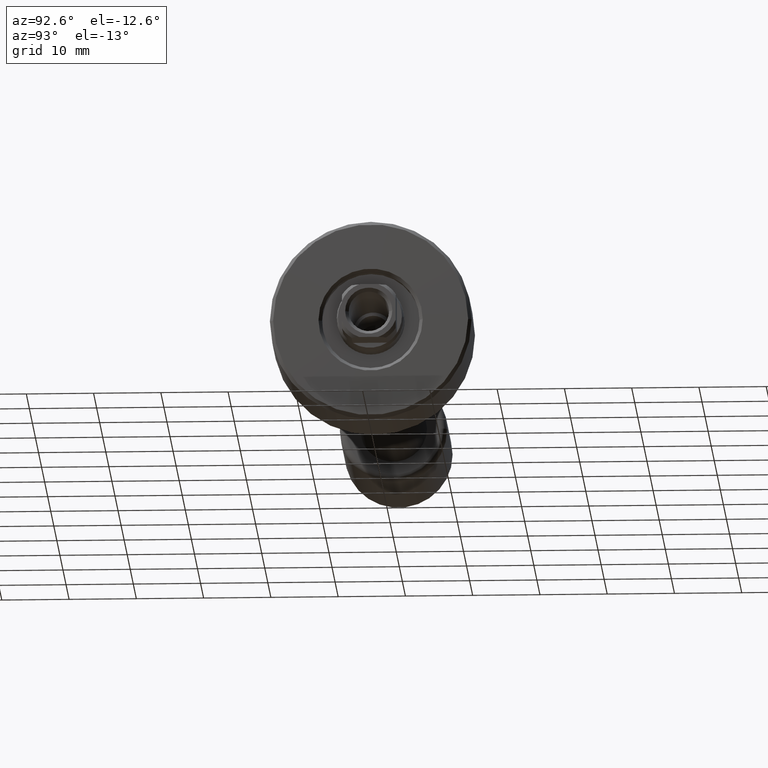
[diagram: clean part render]
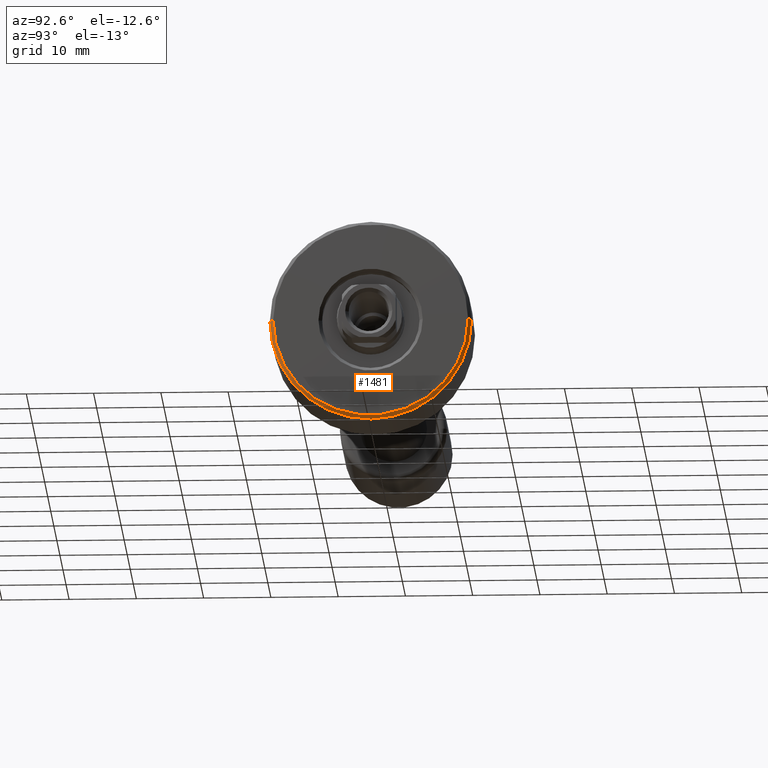
[diagram: same view with one face highlighted and labeled with its STEP entity id]
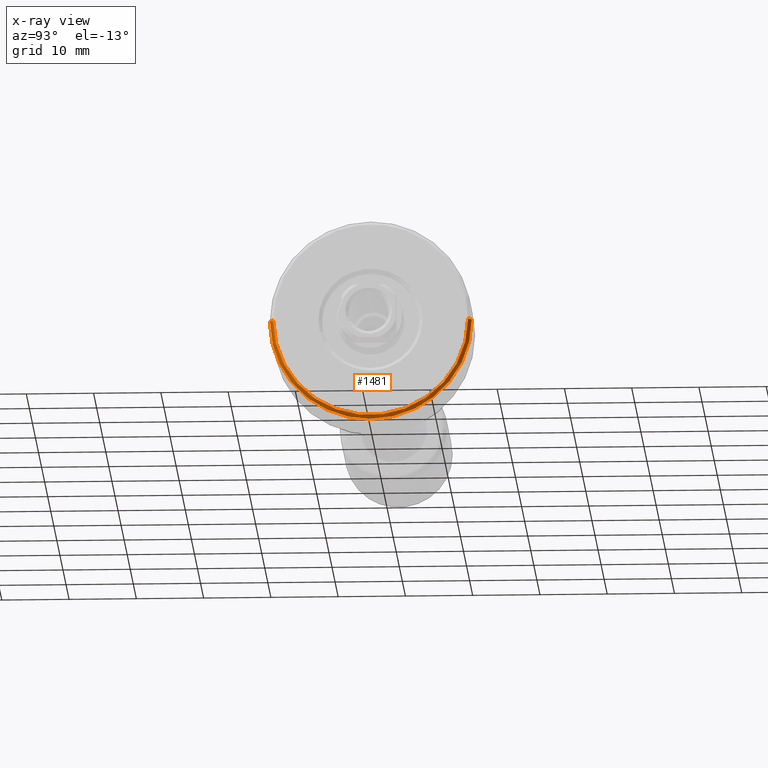
[diagram: x-ray of the same camera — body ghosted, the highlighted face saturated]
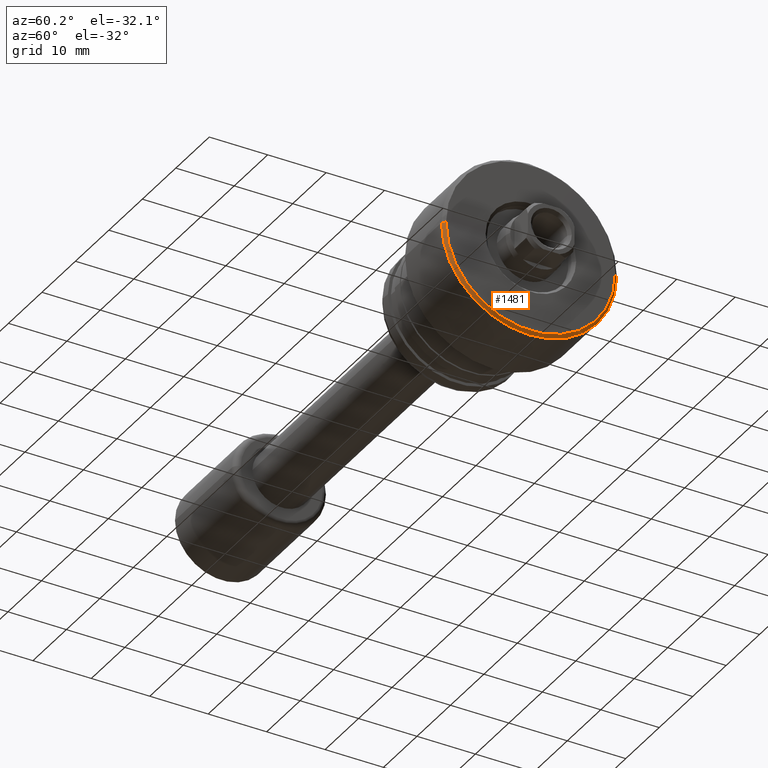
[diagram: same view with one face highlighted and labeled with its STEP entity id]
A machine part, auxiliary view. The second image highlights one B-rep face of the part: STEP entity #1481.
The next image is the same camera in x-ray: the body ghosted, the highlighted face saturated — about 0% of this face is hidden behind the body in this view.
A second angle (auxiliary view) of the same face is appended — the face is thin or edge-on in the first view.
In plain terms, the highlighted conical surface has half-angle 45 deg.
Its self-contained STEP definition (entity closure, byte-faithful):
#50 = AXIS2_PLACEMENT_3D ( 'NONE', #317, #1450, #1856 ) ;
#79 = CARTESIAN_POINT ( 'NONE',  ( -0.1000000000006620593, -1.936230527284280752E-14, 0.000000000000000000 ) ) ;
#109 = ORIENTED_EDGE ( 'NONE', *, *, #1258, .T. ) ;
#137 = CARTESIAN_POINT ( 'NONE',  ( -0.6000000000006998624, -15.00000000000000178, 0.000000000000000000 ) ) ;
#225 = CARTESIAN_POINT ( 'NONE',  ( -0.6000000000006806555, 14.99999999999996270, 1.836970198721027617E-15 ) ) ;
#243 = AXIS2_PLACEMENT_3D ( 'NONE', #1218, #1966, #1381 ) ;
#279 = EDGE_CURVE ( 'NONE', #2035, #2432, #1226, .T. ) ;
#317 = CARTESIAN_POINT ( 'NONE',  ( -0.6000000000006902034, -1.904152510938211848E-14, 0.000000000000000000 ) ) ;
#348 = LINE ( 'NONE', #2006, #566 ) ;
#550 = DIRECTION ( 'NONE',  ( -0.7071067811865479058, -0.7071067811865470176, 0.000000000000000000 ) ) ;
#566 = VECTOR ( 'NONE', #550, 1000.000000000000114 ) ;
#663 = CARTESIAN_POINT ( 'NONE',  ( -0.1000000000006713574, -14.49999999999997335, 0.000000000000000000 ) ) ;
#805 = CONICAL_SURFACE ( 'NONE', #243, 14.99999999999998224, 0.7853981633974482790 ) ;
#807 = DIRECTION ( 'NONE',  ( -1.000000000000000000, 6.415603269213350828E-16, -0.000000000000000000 ) ) ;
#808 = AXIS2_PLACEMENT_3D ( 'NONE', #79, #807, #1561 ) ;
#835 = CARTESIAN_POINT ( 'NONE',  ( -0.6000000000006806555, 14.99999999999996270, 1.836970198721027617E-15 ) ) ;
#878 = EDGE_LOOP ( 'NONE', ( #1471, #1747, #109, #1532 ) ) ;
#909 = VERTEX_POINT ( 'NONE', #137 ) ;
#948 = VECTOR ( 'NONE', #994, 1000.000000000000114 ) ;
#994 = DIRECTION ( 'NONE',  ( -0.7071067811865470176, 0.7071067811865479058, 8.659560562354932858E-17 ) ) ;
#1163 = CIRCLE ( 'NONE', #50, 14.99999999999998224 ) ;
#1218 = CARTESIAN_POINT ( 'NONE',  ( -0.6000000000006902034, -1.904152510938211848E-14, 0.000000000000000000 ) ) ;
#1226 = LINE ( 'NONE', #225, #948 ) ;
#1258 = EDGE_CURVE ( 'NONE', #1526, #909, #348, .T. ) ;
#1381 = DIRECTION ( 'NONE',  ( -6.432932890080667202E-16, -1.000000000000000000, 0.000000000000000000 ) ) ;
#1450 = DIRECTION ( 'NONE',  ( -1.000000000000000000, 6.415603269213350828E-16, -0.000000000000000000 ) ) ;
#1471 = ORIENTED_EDGE ( 'NONE', *, *, #279, .F. ) ;
#1481 = ADVANCED_FACE ( 'NONE', ( #1767 ), #805, .T. ) ;
#1526 = VERTEX_POINT ( 'NONE', #663 ) ;
#1532 = ORIENTED_EDGE ( 'NONE', *, *, #1961, .F. ) ;
#1561 = DIRECTION ( 'NONE',  ( -6.411747330388434316E-16, -1.000000000000000000, 0.000000000000000000 ) ) ;
#1747 = ORIENTED_EDGE ( 'NONE', *, *, #2101, .T. ) ;
#1767 = FACE_OUTER_BOUND ( 'NONE', #878, .T. ) ;
#1798 = CARTESIAN_POINT ( 'NONE',  ( -0.1000000000006527612, 14.49999999999993427, 1.806354028742341858E-15 ) ) ;
#1856 = DIRECTION ( 'NONE',  ( -6.432932890080667202E-16, -1.000000000000000000, 0.000000000000000000 ) ) ;
#1961 = EDGE_CURVE ( 'NONE', #2432, #909, #1163, .T. ) ;
#1966 = DIRECTION ( 'NONE',  ( -1.000000000000000000, 6.415603269213350828E-16, -0.000000000000000000 ) ) ;
#2006 = CARTESIAN_POINT ( 'NONE',  ( -0.6000000000006998624, -15.00000000000000178, 0.000000000000000000 ) ) ;
#2035 = VERTEX_POINT ( 'NONE', #1798 ) ;
#2101 = EDGE_CURVE ( 'NONE', #2035, #1526, #2187, .T. ) ;
#2187 = CIRCLE ( 'NONE', #808, 14.49999999999995381 ) ;
#2432 = VERTEX_POINT ( 'NONE', #835 ) ;